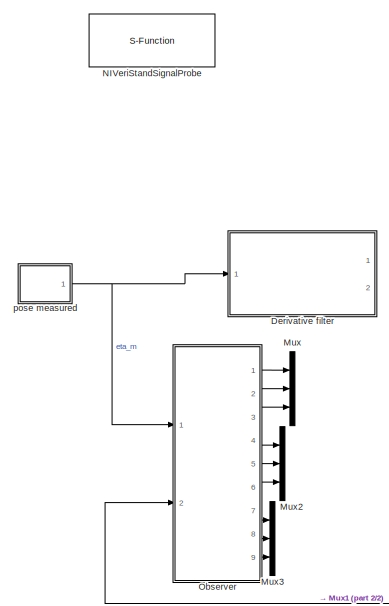
[diagram: root canvas - part 1/2, left side, full height]
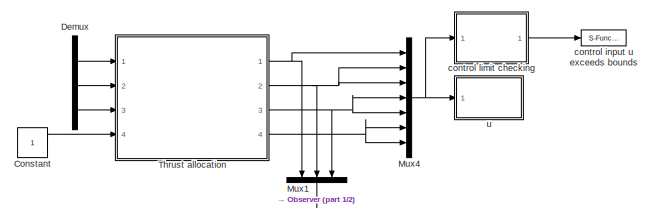
[diagram: root canvas - part 2/2, bottom right region]
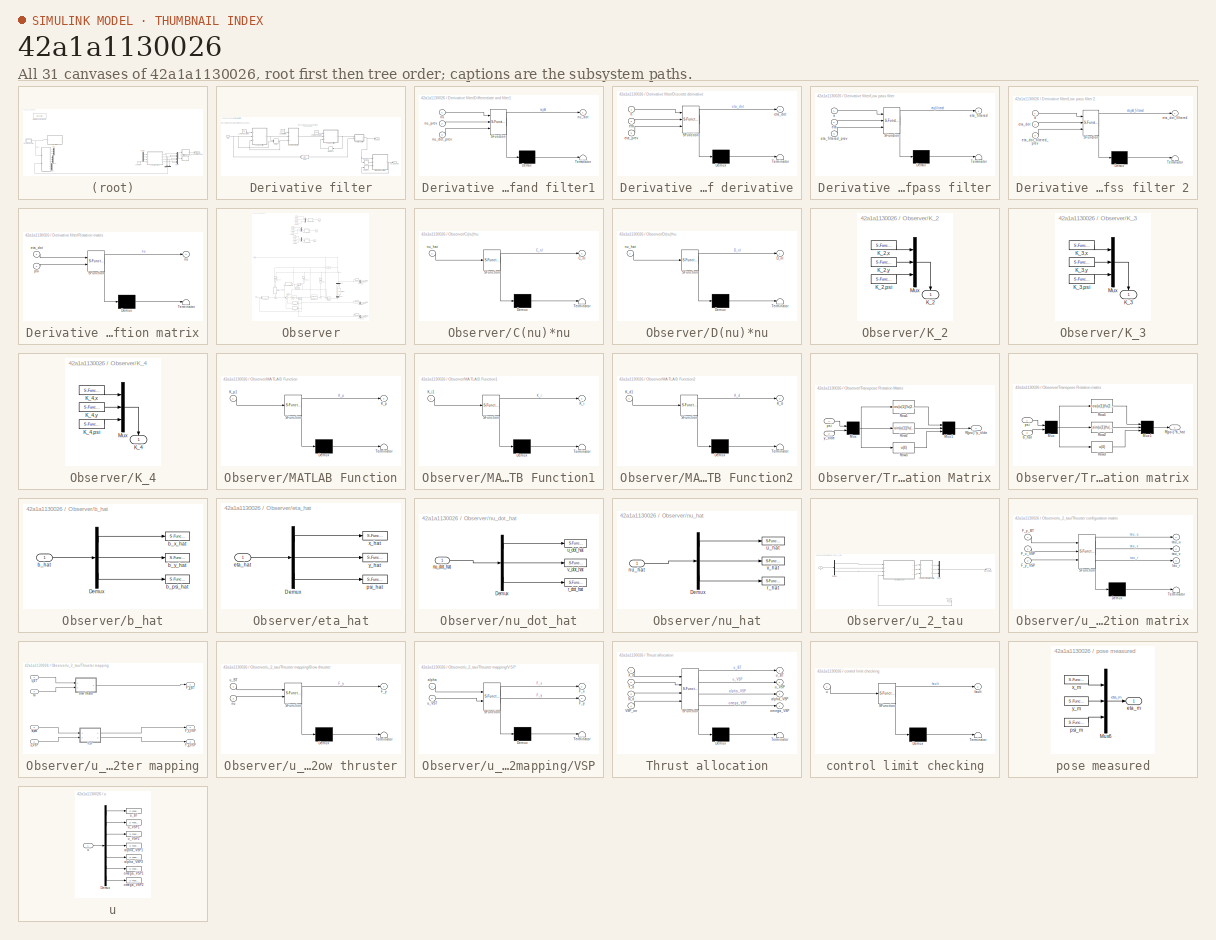
[diagram: thumbnail index - all 31 canvases of the model, root first then tree order]
MODEL slx_42a1a1130026
KIND model
BLOCK [Constant] Constant
BLOCK [Demux] Demux
  DisplayOption = bar
  Outputs = 3
  Ports = [1, 3]
BLOCK [SubSystem] Derivative filter
  Ports = [1, 2]
  RequestExecContextInheritance = off
BLOCK [Delay] Derivative filter/Delay
  DelayLength = 1
  InitialCondition = 0
  InitialConditionSource = Input port
  InputPortMap = u0,p4
  Ports = [2, 1]
BLOCK [SubSystem] Derivative filter/Differentiate and filter1
  ErrorFcn = Stateflow.Translate.translate
  PermitHierarchicalResolution = ExplicitOnly
  Ports = [3, 1]
  RequestExecContextInheritance = off
  SFBlockType = MATLAB Function
  TreatAsAtomicUnit = on
BLOCK [Demux] Derivative filter/Differentiate and filter1/ Demux 
  Outputs = 1
  Ports = [1, 1]
BLOCK [S-Function] Derivative filter/Differentiate and filter1/ SFunction 
  EnableBusSupport = on
  FunctionName = sf_sfun
  PortCounts = [3 2]
  Ports = [3, 2]
  Tag = Stateflow S-Function ctrl_student 5
BLOCK [Terminator] Derivative filter/Differentiate and filter1/ Terminator 
BLOCK [Inport] Derivative filter/Differentiate and filter1/nu
  IconDisplay = Port number
BLOCK [Outport] Derivative filter/Differentiate and filter1/nu_dot
  IconDisplay = Port number
BLOCK [Inport] Derivative filter/Differentiate and filter1/nu_dot_prev
  IconDisplay = Port number
  Port = 3
BLOCK [Inport] Derivative filter/Differentiate and filter1/nu_prev
  IconDisplay = Port number
  Port = 2
BLOCK [SubSystem] Derivative filter/Discrete derivative
  ErrorFcn = Stateflow.Translate.translate
  PermitHierarchicalResolution = ExplicitOnly
  Ports = [3, 1]
  RequestExecContextInheritance = off
  SFBlockType = MATLAB Function
  TreatAsAtomicUnit = on
BLOCK [Demux] Derivative filter/Discrete derivative/ Demux 
  Outputs = 1
  Ports = [1, 1]
BLOCK [S-Function] Derivative filter/Discrete derivative/ SFunction 
  EnableBusSupport = on
  FunctionName = sf_sfun
  PortCounts = [3 2]
  Ports = [3, 2]
  Tag = Stateflow S-Function ctrl_student 33
BLOCK [Terminator] Derivative filter/Discrete derivative/ Terminator 
BLOCK [Inport] Derivative filter/Discrete derivative/eta
  IconDisplay = Port number
  Port = 2
BLOCK [Outport] Derivative filter/Discrete derivative/eta_dot
  IconDisplay = Port number
BLOCK [Inport] Derivative filter/Discrete derivative/eta_prev
  IconDisplay = Port number
  Port = 3
BLOCK [Inport] Derivative filter/Discrete derivative/h
  IconDisplay = Port number
BLOCK [Fcn] Derivative filter/Fcn
  Expr = u(3)
BLOCK [Constant] Derivative filter/Low pass Gain 1
  Value = 0.05
BLOCK [Constant] Derivative filter/Low pass Gain 2
  Value = 0.05
BLOCK [SubSystem] Derivative filter/Low pass filter
  ErrorFcn = Stateflow.Translate.translate
  PermitHierarchicalResolution = ExplicitOnly
  Ports = [3, 1]
  RequestExecContextInheritance = off
  SFBlockType = MATLAB Function
  TreatAsAtomicUnit = on
BLOCK [SubSystem] Derivative filter/Low pass filter 2
  ErrorFcn = Stateflow.Translate.translate
  PermitHierarchicalResolution = ExplicitOnly
  Ports = [3, 1]
  RequestExecContextInheritance = off
  SFBlockType = MATLAB Function
  TreatAsAtomicUnit = on
BLOCK [Demux] Derivative filter/Low pass filter 2/ Demux 
  Outputs = 1
  Ports = [1, 1]
BLOCK [S-Function] Derivative filter/Low pass filter 2/ SFunction 
  EnableBusSupport = on
  FunctionName = sf_sfun
  PortCounts = [3 2]
  Ports = [3, 2]
  Tag = Stateflow S-Function ctrl_student 34
BLOCK [Terminator] Derivative filter/Low pass filter 2/ Terminator 
BLOCK [Inport] Derivative filter/Low pass filter 2/a
  IconDisplay = Port number
BLOCK [Inport] Derivative filter/Low pass filter 2/eta_dot
  IconDisplay = Port number
  Port = 2
BLOCK [Outport] Derivative filter/Low pass filter 2/eta_dot_filtered
  IconDisplay = Port number
BLOCK [Inport] Derivative filter/Low pass filter 2/eta_dot_filtered_prev
  IconDisplay = Port number
  Port = 3
BLOCK [Demux] Derivative filter/Low pass filter/ Demux 
  Outputs = 1
  Ports = [1, 1]
BLOCK [S-Function] Derivative filter/Low pass filter/ SFunction 
  EnableBusSupport = on
  FunctionName = sf_sfun
  PortCounts = [3 2]
  Ports = [3, 2]
  Tag = Stateflow S-Function ctrl_student 32
BLOCK [Terminator] Derivative filter/Low pass filter/ Terminator 
BLOCK [Inport] Derivative filter/Low pass filter/a
  IconDisplay = Port number
BLOCK [Inport] Derivative filter/Low pass filter/eta
  IconDisplay = Port number
  Port = 2
BLOCK [Outport] Derivative filter/Low pass filter/eta_filtered
  IconDisplay = Port number
BLOCK [Inport] Derivative filter/Low pass filter/eta_filtered_prev
  IconDisplay = Port number
  Port = 3
BLOCK [Memory] Derivative filter/Memory1
  X0 = [0 0 0]
BLOCK [Memory] Derivative filter/Memory2
  X0 = [0 0 0]
BLOCK [Memory] Derivative filter/Memory3
  X0 = [0 0 0]
BLOCK [SubSystem] Derivative filter/Rotation matrix
  ErrorFcn = Stateflow.Translate.translate
  PermitHierarchicalResolution = ExplicitOnly
  Ports = [2, 1]
  RequestExecContextInheritance = off
  SFBlockType = MATLAB Function
  TreatAsAtomicUnit = on
BLOCK [Demux] Derivative filter/Rotation matrix/ Demux 
  Outputs = 1
  Ports = [1, 1]
BLOCK [S-Function] Derivative filter/Rotation matrix/ SFunction 
  EnableBusSupport = on
  FunctionName = sf_sfun
  PortCounts = [2 2]
  Ports = [2, 2]
  Tag = Stateflow S-Function ctrl_student 35
BLOCK [Terminator] Derivative filter/Rotation matrix/ Terminator 
BLOCK [Inport] Derivative filter/Rotation matrix/eta_dot
  IconDisplay = Port number
BLOCK [Outport] Derivative filter/Rotation matrix/nu
  IconDisplay = Port number
BLOCK [Inport] Derivative filter/Rotation matrix/psi
  IconDisplay = Port number
  Port = 2
BLOCK [Inport] Derivative filter/eta
  IconDisplay = Port number
BLOCK [Outport] Derivative filter/nu_dot_hat
  IconDisplay = Port number
  Port = 2
BLOCK [Outport] Derivative filter/nu_hat
  IconDisplay = Port number
BLOCK [Constant] Derivative filter/sample time
  Value = 0.01
BLOCK [Mux] Mux
  Commented = on
  DisplayOption = bar
  Inputs = 3
  Ports = [3, 1]
BLOCK [Mux] Mux1
  DisplayOption = bar
  Inputs = 3
  Ports = [3, 1]
BLOCK [Mux] Mux2
  Commented = on
  DisplayOption = bar
  Inputs = 3
  Ports = [3, 1]
BLOCK [Mux] Mux3
  Commented = on
  DisplayOption = bar
  Inputs = 3
  Ports = [3, 1]
BLOCK [Mux] Mux4
  DisplayOption = bar
  Inputs = 7
  Ports = [7, 1]
BLOCK [S-Function] NIVeriStandSignalProbe
  EnableBusSupport = off
  FunctionName = NIVeriStandSignalProbe
  Parameters = 1
  Ports = []
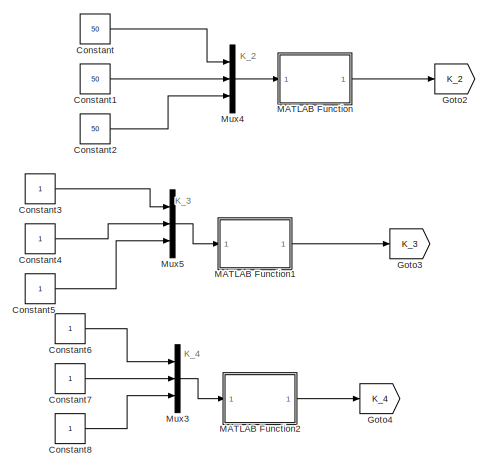
[diagram: Observer - part 1/5, top center region]
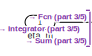
[diagram: Observer - part 2/5, middle left region]
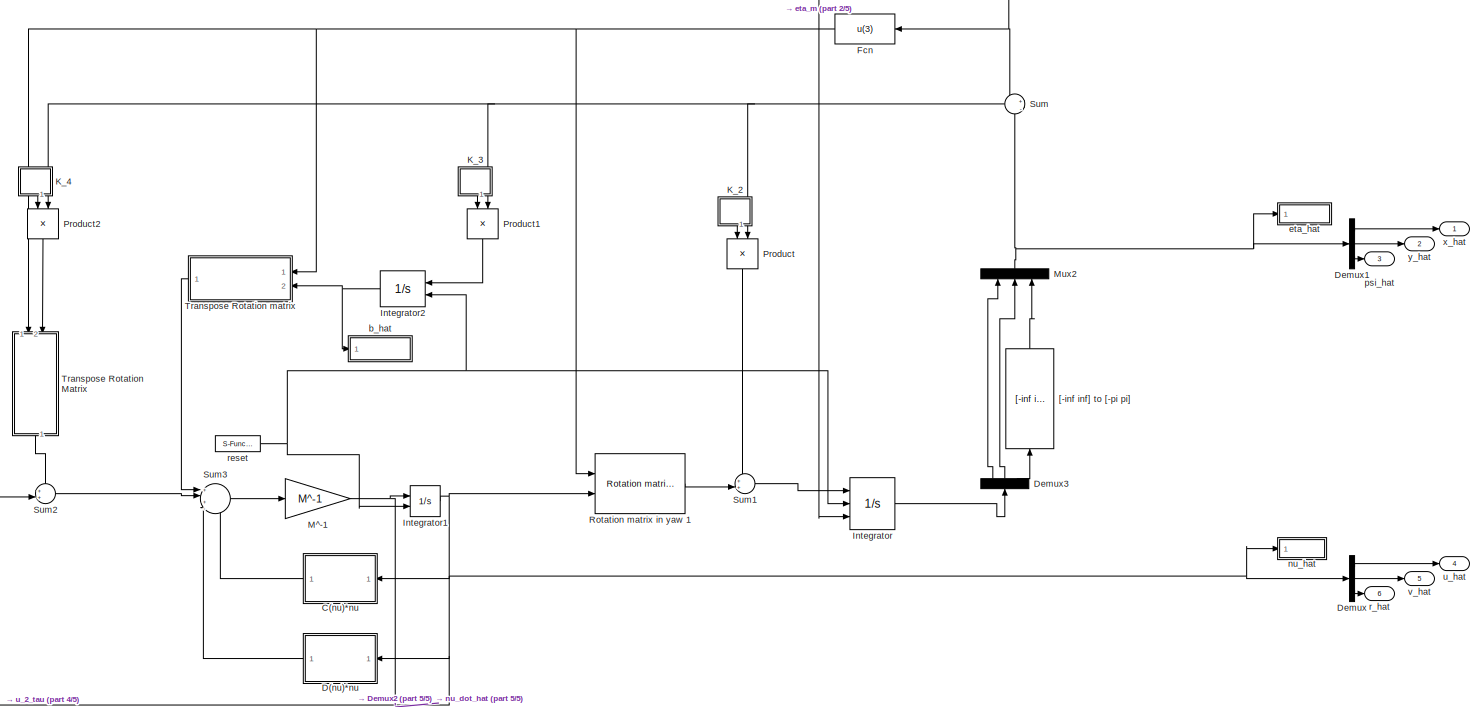
[diagram: Observer - part 3/5, full width, bottom band]
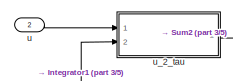
[diagram: Observer - part 4/5, bottom left region]
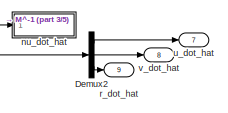
[diagram: Observer - part 5/5, bottom right region]
BLOCK [SubSystem] Observer
  Ports = [2, 9]
  RequestExecContextInheritance = off
BLOCK [SubSystem] Observer/C(nu)*nu
  ErrorFcn = Stateflow.Translate.translate
  PermitHierarchicalResolution = ExplicitOnly
  Ports = [1, 1]
  RequestExecContextInheritance = off
  SFBlockType = MATLAB Function
  TreatAsAtomicUnit = on
BLOCK [Demux] Observer/C(nu)*nu/ Demux 
  Outputs = 1
  Ports = [1, 1]
BLOCK [S-Function] Observer/C(nu)*nu/ SFunction 
  EnableBusSupport = on
  FunctionName = sf_sfun
  PortCounts = [1 2]
  Ports = [1, 2]
  Tag = Stateflow S-Function ctrl_student 15
BLOCK [Terminator] Observer/C(nu)*nu/ Terminator 
BLOCK [Outport] Observer/C(nu)*nu/C_nl
  IconDisplay = Port number
BLOCK [Inport] Observer/C(nu)*nu/nu_hat
  IconDisplay = Port number
BLOCK [Constant] Observer/Constant
  Value = 50
BLOCK [Constant] Observer/Constant1
  Value = 50
BLOCK [Constant] Observer/Constant2
  Value = 50
BLOCK [Constant] Observer/Constant3
BLOCK [Constant] Observer/Constant4
BLOCK [Constant] Observer/Constant5
BLOCK [Constant] Observer/Constant6
BLOCK [Constant] Observer/Constant7
BLOCK [Constant] Observer/Constant8
BLOCK [SubSystem] Observer/D(nu)*nu
  ErrorFcn = Stateflow.Translate.translate
  PermitHierarchicalResolution = ExplicitOnly
  Ports = [1, 1]
  RequestExecContextInheritance = off
  SFBlockType = MATLAB Function
  TreatAsAtomicUnit = on
BLOCK [Demux] Observer/D(nu)*nu/ Demux 
  Outputs = 1
  Ports = [1, 1]
BLOCK [S-Function] Observer/D(nu)*nu/ SFunction 
  EnableBusSupport = on
  FunctionName = sf_sfun
  PortCounts = [1 2]
  Ports = [1, 2]
  Tag = Stateflow S-Function ctrl_student 14
BLOCK [Terminator] Observer/D(nu)*nu/ Terminator 
BLOCK [Outport] Observer/D(nu)*nu/D_nl
  IconDisplay = Port number
BLOCK [Inport] Observer/D(nu)*nu/nu_hat
  IconDisplay = Port number
BLOCK [Demux] Observer/Demux
  DisplayOption = bar
  Outputs = 3
  Ports = [1, 3]
BLOCK [Demux] Observer/Demux1
  DisplayOption = bar
  Outputs = 3
  Ports = [1, 3]
BLOCK [Demux] Observer/Demux2
  DisplayOption = bar
  Outputs = 3
  Ports = [1, 3]
BLOCK [Demux] Observer/Demux3
  DisplayOption = bar
  Outputs = 3
  Ports = [1, 3]
BLOCK [Fcn] Observer/Fcn
  Expr = u(3)
BLOCK [Goto] Observer/Goto2
  GotoTag = K_2
  TagVisibility = global
BLOCK [Goto] Observer/Goto3
  GotoTag = K_3
  TagVisibility = global
BLOCK [Goto] Observer/Goto4
  GotoTag = K_4
  TagVisibility = global
BLOCK [Integrator] Observer/Integrator
  ExternalReset = either
  InitialConditionSource = external
  Ports = [3, 1]
BLOCK [Integrator] Observer/Integrator1
  ExternalReset = either
  InitialCondition = [0 0 0]'
  Ports = [2, 1]
BLOCK [Integrator] Observer/Integrator2
  ExternalReset = either
  InitialCondition = [0 0 0]'
  Ports = [2, 1]
BLOCK [SubSystem] Observer/K_2
  Ports = [0, 1]
  RequestExecContextInheritance = off
BLOCK [Outport] Observer/K_2/K_2
  IconDisplay = Port number
BLOCK [S-Function] Observer/K_2/K_2,psi
  CopyFcn = NIVeriStand_MDL_functions('', 'IO_copy');
  DeleteFcn = NIVeriStand_MDL_functions('', 'IO_delete');
  EnableBusSupport = off
  FunctionName = NIVeriStandIO
  MoveFcn = set_param(gcb, 'Mask', 'on');
  Parameters = width dtype portnum stime stype btype
  Ports = [0, 1]
  Priority = 4
BLOCK [S-Function] Observer/K_2/K_2,x
  CopyFcn = NIVeriStand_MDL_functions('', 'IO_copy');
  DeleteFcn = NIVeriStand_MDL_functions('', 'IO_delete');
  EnableBusSupport = off
  FunctionName = NIVeriStandIO
  MoveFcn = set_param(gcb, 'Mask', 'on');
  Parameters = width dtype portnum stime stype btype
  Ports = [0, 1]
  Priority = 2
BLOCK [S-Function] Observer/K_2/K_2,y
  CopyFcn = NIVeriStand_MDL_functions('', 'IO_copy');
  DeleteFcn = NIVeriStand_MDL_functions('', 'IO_delete');
  EnableBusSupport = off
  FunctionName = NIVeriStandIO
  MoveFcn = set_param(gcb, 'Mask', 'on');
  Parameters = width dtype portnum stime stype btype
  Ports = [0, 1]
  Priority = 3
BLOCK [Mux] Observer/K_2/Mux
  DisplayOption = bar
  Inputs = 3
  Ports = [3, 1]
BLOCK [SubSystem] Observer/K_3
  Ports = [0, 1]
  RequestExecContextInheritance = off
BLOCK [Outport] Observer/K_3/K_3
  IconDisplay = Port number
BLOCK [S-Function] Observer/K_3/K_3,psi
  CopyFcn = NIVeriStand_MDL_functions('', 'IO_copy');
  DeleteFcn = NIVeriStand_MDL_functions('', 'IO_delete');
  EnableBusSupport = off
  FunctionName = NIVeriStandIO
  MoveFcn = set_param(gcb, 'Mask', 'on');
  Parameters = width dtype portnum stime stype btype
  Ports = [0, 1]
  Priority = 1
BLOCK [S-Function] Observer/K_3/K_3,x
  CopyFcn = NIVeriStand_MDL_functions('', 'IO_copy');
  DeleteFcn = NIVeriStand_MDL_functions('', 'IO_delete');
  EnableBusSupport = off
  FunctionName = NIVeriStandIO
  MoveFcn = set_param(gcb, 'Mask', 'on');
  Parameters = width dtype portnum stime stype btype
  Ports = [0, 1]
  Priority = 2
BLOCK [S-Function] Observer/K_3/K_3,y
  CopyFcn = NIVeriStand_MDL_functions('', 'IO_copy');
  DeleteFcn = NIVeriStand_MDL_functions('', 'IO_delete');
  EnableBusSupport = off
  FunctionName = NIVeriStandIO
  MoveFcn = set_param(gcb, 'Mask', 'on');
  Parameters = width dtype portnum stime stype btype
  Ports = [0, 1]
  Priority = 3
BLOCK [Mux] Observer/K_3/Mux
  DisplayOption = bar
  Inputs = 3
  Ports = [3, 1]
BLOCK [SubSystem] Observer/K_4
  Ports = [0, 1]
  RequestExecContextInheritance = off
BLOCK [Outport] Observer/K_4/K_4
  IconDisplay = Port number
BLOCK [S-Function] Observer/K_4/K_4,psi
  CopyFcn = NIVeriStand_MDL_functions('', 'IO_copy');
  DeleteFcn = NIVeriStand_MDL_functions('', 'IO_delete');
  EnableBusSupport = off
  FunctionName = NIVeriStandIO
  MoveFcn = set_param(gcb, 'Mask', 'on');
  Parameters = width dtype portnum stime stype btype
  Ports = [0, 1]
  Priority = 1
BLOCK [S-Function] Observer/K_4/K_4,x
  CopyFcn = NIVeriStand_MDL_functions('', 'IO_copy');
  DeleteFcn = NIVeriStand_MDL_functions('', 'IO_delete');
  EnableBusSupport = off
  FunctionName = NIVeriStandIO
  MoveFcn = set_param(gcb, 'Mask', 'on');
  Parameters = width dtype portnum stime stype btype
  Ports = [0, 1]
  Priority = 2
BLOCK [S-Function] Observer/K_4/K_4,y
  CopyFcn = NIVeriStand_MDL_functions('', 'IO_copy');
  DeleteFcn = NIVeriStand_MDL_functions('', 'IO_delete');
  EnableBusSupport = off
  FunctionName = NIVeriStandIO
  MoveFcn = set_param(gcb, 'Mask', 'on');
  Parameters = width dtype portnum stime stype btype
  Ports = [0, 1]
  Priority = 3
BLOCK [Mux] Observer/K_4/Mux
  DisplayOption = bar
  Inputs = 3
  Ports = [3, 1]
BLOCK [SubSystem] Observer/MATLAB Function
  ErrorFcn = Stateflow.Translate.translate
  PermitHierarchicalResolution = ExplicitOnly
  Ports = [1, 1]
  RequestExecContextInheritance = off
  SFBlockType = MATLAB Function
  TreatAsAtomicUnit = on
BLOCK [Demux] Observer/MATLAB Function/ Demux 
  Outputs = 1
  Ports = [1, 1]
BLOCK [S-Function] Observer/MATLAB Function/ SFunction 
  EnableBusSupport = on
  FunctionName = sf_sfun
  PortCounts = [1 2]
  Ports = [1, 2]
  Tag = Stateflow S-Function ctrl_student 29
BLOCK [Terminator] Observer/MATLAB Function/ Terminator 
BLOCK [Outport] Observer/MATLAB Function/K_p
  IconDisplay = Port number
BLOCK [Inport] Observer/MATLAB Function/K_p1
  IconDisplay = Port number
BLOCK [SubSystem] Observer/MATLAB Function1
  ErrorFcn = Stateflow.Translate.translate
  PermitHierarchicalResolution = ExplicitOnly
  Ports = [1, 1]
  RequestExecContextInheritance = off
  SFBlockType = MATLAB Function
  TreatAsAtomicUnit = on
BLOCK [Demux] Observer/MATLAB Function1/ Demux 
  Outputs = 1
  Ports = [1, 1]
BLOCK [S-Function] Observer/MATLAB Function1/ SFunction 
  EnableBusSupport = on
  FunctionName = sf_sfun
  PortCounts = [1 2]
  Ports = [1, 2]
  Tag = Stateflow S-Function ctrl_student 30
BLOCK [Terminator] Observer/MATLAB Function1/ Terminator 
BLOCK [Outport] Observer/MATLAB Function1/K_i
  IconDisplay = Port number
BLOCK [Inport] Observer/MATLAB Function1/K_i1
  IconDisplay = Port number
BLOCK [SubSystem] Observer/MATLAB Function2
  ErrorFcn = Stateflow.Translate.translate
  PermitHierarchicalResolution = ExplicitOnly
  Ports = [1, 1]
  RequestExecContextInheritance = off
  SFBlockType = MATLAB Function
  TreatAsAtomicUnit = on
BLOCK [Demux] Observer/MATLAB Function2/ Demux 
  Outputs = 1
  Ports = [1, 1]
BLOCK [S-Function] Observer/MATLAB Function2/ SFunction 
  EnableBusSupport = on
  FunctionName = sf_sfun
  PortCounts = [1 2]
  Ports = [1, 2]
  Tag = Stateflow S-Function ctrl_student 31
BLOCK [Terminator] Observer/MATLAB Function2/ Terminator 
BLOCK [Outport] Observer/MATLAB Function2/K_d
  IconDisplay = Port number
BLOCK [Inport] Observer/MATLAB Function2/K_d1
  IconDisplay = Port number
BLOCK [Gain] Observer/M^-1
  Gain = M^-1
  Multiplication = Matrix(K*u)
  OutDataTypeStr = Inherit: Inherit via internal rule
  ParamDataTypeStr = Inherit: Inherit via internal rule
  SaturateOnIntegerOverflow = off
BLOCK [Mux] Observer/Mux2
  DisplayOption = bar
  Inputs = 3
  Ports = [3, 1]
BLOCK [Mux] Observer/Mux3
  DisplayOption = bar
  Inputs = 3
  Ports = [3, 1]
BLOCK [Mux] Observer/Mux4
  DisplayOption = bar
  Inputs = 3
  Ports = [3, 1]
BLOCK [Mux] Observer/Mux5
  DisplayOption = bar
  Inputs = 3
  Ports = [3, 1]
BLOCK [Product] Observer/Product
  InputSameDT = off
  OutDataTypeStr = Inherit: Inherit via internal rule
  Ports = [2, 1]
  RndMeth = Floor
  SaturateOnIntegerOverflow = off
BLOCK [Product] Observer/Product1
  InputSameDT = off
  OutDataTypeStr = Inherit: Inherit via internal rule
  Ports = [2, 1]
  RndMeth = Floor
  SaturateOnIntegerOverflow = off
BLOCK [Product] Observer/Product2
  InputSameDT = off
  OutDataTypeStr = Inherit: Inherit via internal rule
  Ports = [2, 1]
  RndMeth = Floor
  SaturateOnIntegerOverflow = off
BLOCK [Reference] Observer/Rotation matrix in yaw 1  REF=marine_gnc/Models/ Kinematics/Rotation matrix  (lib defined in mdl_10d96c221ba8, mdl_45f1105420c6)
in yaw 
  Ports = [2, 1]
  SourceBlock = marine_gnc/Models/ Kinematics/Rotation matrix\nin yaw
BLOCK [Sum] Observer/Sum
  IconShape = round
  InputSameDT = off
  Inputs = +|-
  OutDataTypeStr = Inherit: Inherit via internal rule
  Ports = [2, 1]
  SaturateOnIntegerOverflow = off
BLOCK [Sum] Observer/Sum1
  IconShape = round
  InputSameDT = off
  Inputs = ++|
  OutDataTypeStr = Inherit: Inherit via internal rule
  Ports = [2, 1]
  SaturateOnIntegerOverflow = off
BLOCK [Sum] Observer/Sum2
  IconShape = round
  InputSameDT = off
  Inputs = ++|
  OutDataTypeStr = Inherit: Inherit via internal rule
  Ports = [2, 1]
  SaturateOnIntegerOverflow = off
BLOCK [Sum] Observer/Sum3
  IconShape = round
  InputSameDT = off
  Inputs = +|+|--
  OutDataTypeStr = Inherit: Inherit via internal rule
  Ports = [4, 1]
  SaturateOnIntegerOverflow = off
BLOCK [SubSystem] Observer/Transpose Rotation Matrix
  Ports = [2, 1]
  RequestExecContextInheritance = off
BLOCK [Mux] Observer/Transpose Rotation Matrix/Mux
  Inputs = 2
  Ports = [2, 1]
BLOCK [Mux] Observer/Transpose Rotation Matrix/Mux1
  Inputs = 3
  Ports = [3, 1]
BLOCK [Outport] Observer/Transpose Rotation Matrix/R(psi)'*y_tilde
  IconDisplay = Port number
BLOCK [Fcn] Observer/Transpose Rotation Matrix/Row1
  Expr = cos(u(1))*u(2)+sin(u(1))*u(3)
BLOCK [Fcn] Observer/Transpose Rotation Matrix/Row2
  Expr = -sin(u(1))*u(2)+cos(u(1))*u(3)
BLOCK [Fcn] Observer/Transpose Rotation Matrix/Row3
  Expr = u(4)
BLOCK [Inport] Observer/Transpose Rotation Matrix/psi
  IconDisplay = Port number
BLOCK [Inport] Observer/Transpose Rotation Matrix/y_tilde
  IconDisplay = Port number
  Port = 2
BLOCK [SubSystem] Observer/Transpose Rotation matrix
  Ports = [2, 1]
  RequestExecContextInheritance = off
BLOCK [Mux] Observer/Transpose Rotation matrix/Mux
  Inputs = 2
  Ports = [2, 1]
BLOCK [Mux] Observer/Transpose Rotation matrix/Mux1
  Inputs = 3
  Ports = [3, 1]
BLOCK [Outport] Observer/Transpose Rotation matrix/R(psi)'*b_hat
  IconDisplay = Port number
BLOCK [Fcn] Observer/Transpose Rotation matrix/Row1
  Expr = cos(u(1))*u(2)+sin(u(1))*u(3)
BLOCK [Fcn] Observer/Transpose Rotation matrix/Row2
  Expr = -sin(u(1))*u(2)+cos(u(1))*u(3)
BLOCK [Fcn] Observer/Transpose Rotation matrix/Row3
  Expr = u(4)
BLOCK [Inport] Observer/Transpose Rotation matrix/b_hat
  IconDisplay = Port number
  Port = 2
BLOCK [Inport] Observer/Transpose Rotation matrix/psi
  IconDisplay = Port number
BLOCK [Reference] Observer/[-inf inf] to [-pi pi]  REF=marine_gnc/Utilities/Math Operations/[-inf inf] to [-pi pi]  (lib defined in mdl_10d96c221ba8, mdl_45f1105420c6)
  Ports = [1, 1]
  SourceBlock = marine_gnc/Utilities/Math Operations/[-inf inf] to [-pi pi]
  SourceType = [-inf inf] to [-pi pi]
BLOCK [SubSystem] Observer/b_hat
  Ports = [1]
  RequestExecContextInheritance = off
BLOCK [Demux] Observer/b_hat/Demux
  DisplayOption = bar
  Outputs = 3
  Ports = [1, 3]
BLOCK [Inport] Observer/b_hat/b_hat
  IconDisplay = Port number
BLOCK [S-Function] Observer/b_hat/b_psi_hat
  CopyFcn = NIVeriStand_MDL_functions('', 'IO_copy');
  DeleteFcn = NIVeriStand_MDL_functions('', 'IO_delete');
  EnableBusSupport = off
  FunctionName = NIVeriStandIO
  MoveFcn = set_param(gcb, 'Mask', 'on');
  Parameters = width dtype portnum stime stype btype
  Ports = [1]
  Priority = 3
BLOCK [S-Function] Observer/b_hat/b_x_hat
  CopyFcn = NIVeriStand_MDL_functions('', 'IO_copy');
  DeleteFcn = NIVeriStand_MDL_functions('', 'IO_delete');
  EnableBusSupport = off
  FunctionName = NIVeriStandIO
  MoveFcn = set_param(gcb, 'Mask', 'on');
  Parameters = width dtype portnum stime stype btype
  Ports = [1]
  Priority = 1
BLOCK [S-Function] Observer/b_hat/b_y_hat
  CopyFcn = NIVeriStand_MDL_functions('', 'IO_copy');
  DeleteFcn = NIVeriStand_MDL_functions('', 'IO_delete');
  EnableBusSupport = off
  FunctionName = NIVeriStandIO
  MoveFcn = set_param(gcb, 'Mask', 'on');
  Parameters = width dtype portnum stime stype btype
  Ports = [1]
  Priority = 2
BLOCK [SubSystem] Observer/eta_hat
  Ports = [1]
  RequestExecContextInheritance = off
BLOCK [Demux] Observer/eta_hat/Demux
  DisplayOption = bar
  Outputs = 3
  Ports = [1, 3]
BLOCK [Inport] Observer/eta_hat/eta_hat
  IconDisplay = Port number
BLOCK [S-Function] Observer/eta_hat/psi_hat
  CopyFcn = NIVeriStand_MDL_functions('', 'IO_copy');
  DeleteFcn = NIVeriStand_MDL_functions('', 'IO_delete');
  EnableBusSupport = off
  FunctionName = NIVeriStandIO
  MoveFcn = set_param(gcb, 'Mask', 'on');
  Parameters = width dtype portnum stime stype btype
  Ports = [1]
  Priority = 3
BLOCK [S-Function] Observer/eta_hat/x_hat
  CopyFcn = NIVeriStand_MDL_functions('', 'IO_copy');
  DeleteFcn = NIVeriStand_MDL_functions('', 'IO_delete');
  EnableBusSupport = off
  FunctionName = NIVeriStandIO
  MoveFcn = set_param(gcb, 'Mask', 'on');
  Parameters = width dtype portnum stime stype btype
  Ports = [1]
  Priority = 1
BLOCK [S-Function] Observer/eta_hat/y_hat
  CopyFcn = NIVeriStand_MDL_functions('', 'IO_copy');
  DeleteFcn = NIVeriStand_MDL_functions('', 'IO_delete');
  EnableBusSupport = off
  FunctionName = NIVeriStandIO
  MoveFcn = set_param(gcb, 'Mask', 'on');
  Parameters = width dtype portnum stime stype btype
  Ports = [1]
  Priority = 2
BLOCK [Inport] Observer/eta_m
  IconDisplay = Port number
BLOCK [SubSystem] Observer/nu_dot_hat
  Ports = [1]
  RequestExecContextInheritance = off
BLOCK [Demux] Observer/nu_dot_hat/Demux
  DisplayOption = bar
  Outputs = 3
  Ports = [1, 3]
BLOCK [Inport] Observer/nu_dot_hat/nu_dot_hat
  IconDisplay = Port number
BLOCK [S-Function] Observer/nu_dot_hat/r_dot_hat
  CopyFcn = NIVeriStand_MDL_functions('', 'IO_copy');
  DeleteFcn = NIVeriStand_MDL_functions('', 'IO_delete');
  EnableBusSupport = off
  FunctionName = NIVeriStandIO
  MoveFcn = set_param(gcb, 'Mask', 'on');
  Parameters = width dtype portnum stime stype btype
  Ports = [1]
  Priority = 3
BLOCK [S-Function] Observer/nu_dot_hat/u_dot_hat
  CopyFcn = NIVeriStand_MDL_functions('', 'IO_copy');
  DeleteFcn = NIVeriStand_MDL_functions('', 'IO_delete');
  EnableBusSupport = off
  FunctionName = NIVeriStandIO
  MoveFcn = set_param(gcb, 'Mask', 'on');
  Parameters = width dtype portnum stime stype btype
  Ports = [1]
  Priority = 1
BLOCK [S-Function] Observer/nu_dot_hat/v_dot_hat
  CopyFcn = NIVeriStand_MDL_functions('', 'IO_copy');
  DeleteFcn = NIVeriStand_MDL_functions('', 'IO_delete');
  EnableBusSupport = off
  FunctionName = NIVeriStandIO
  MoveFcn = set_param(gcb, 'Mask', 'on');
  Parameters = width dtype portnum stime stype btype
  Ports = [1]
  Priority = 2
BLOCK [SubSystem] Observer/nu_hat
  Ports = [1]
  RequestExecContextInheritance = off
BLOCK [Demux] Observer/nu_hat/Demux
  DisplayOption = bar
  Outputs = 3
  Ports = [1, 3]
BLOCK [Inport] Observer/nu_hat/nu_hat
  IconDisplay = Port number
BLOCK [S-Function] Observer/nu_hat/r_hat
  CopyFcn = NIVeriStand_MDL_functions('', 'IO_copy');
  DeleteFcn = NIVeriStand_MDL_functions('', 'IO_delete');
  EnableBusSupport = off
  FunctionName = NIVeriStandIO
  MoveFcn = set_param(gcb, 'Mask', 'on');
  Parameters = width dtype portnum stime stype btype
  Ports = [1]
  Priority = 3
BLOCK [S-Function] Observer/nu_hat/u_hat
  CopyFcn = NIVeriStand_MDL_functions('', 'IO_copy');
  DeleteFcn = NIVeriStand_MDL_functions('', 'IO_delete');
  EnableBusSupport = off
  FunctionName = NIVeriStandIO
  MoveFcn = set_param(gcb, 'Mask', 'on');
  Parameters = width dtype portnum stime stype btype
  Ports = [1]
  Priority = 1
BLOCK [S-Function] Observer/nu_hat/v_hat
  CopyFcn = NIVeriStand_MDL_functions('', 'IO_copy');
  DeleteFcn = NIVeriStand_MDL_functions('', 'IO_delete');
  EnableBusSupport = off
  FunctionName = NIVeriStandIO
  MoveFcn = set_param(gcb, 'Mask', 'on');
  Parameters = width dtype portnum stime stype btype
  Ports = [1]
  Priority = 2
BLOCK [Outport] Observer/psi_hat
  IconDisplay = Port number
  Port = 3
BLOCK [Outport] Observer/r_dot_hat
  IconDisplay = Port number
  Port = 9
BLOCK [Outport] Observer/r_hat
  IconDisplay = Port number
  Port = 6
BLOCK [S-Function] Observer/reset
  CopyFcn = NIVeriStand_MDL_functions('', 'IO_copy');
  DeleteFcn = NIVeriStand_MDL_functions('', 'IO_delete');
  EnableBusSupport = off
  FunctionName = NIVeriStandIO
  MoveFcn = set_param(gcb, 'Mask', 'on');
  Parameters = width dtype portnum stime stype btype
  Ports = [0, 1]
  Priority = 1
BLOCK [Inport] Observer/u
  IconDisplay = Port number
  Port = 2
BLOCK [SubSystem] Observer/u_2_tau
  Ports = [2, 1]
  RequestExecContextInheritance = off
BLOCK [Demux] Observer/u_2_tau/Demux
  DisplayOption = bar
  Outputs = 3
  Ports = [1, 3]
BLOCK [Mux] Observer/u_2_tau/Mux2
  DisplayOption = bar
  Inputs = 3
  Ports = [3, 1]
BLOCK [SubSystem] Observer/u_2_tau/Thruster configuration matrix
  ErrorFcn = Stateflow.Translate.translate
  PermitHierarchicalResolution = ExplicitOnly
  Ports = [3, 3]
  RequestExecContextInheritance = off
  SFBlockType = MATLAB Function
  TreatAsAtomicUnit = on
BLOCK [Demux] Observer/u_2_tau/Thruster configuration matrix/ Demux 
  Outputs = 1
  Ports = [1, 1]
BLOCK [S-Function] Observer/u_2_tau/Thruster configuration matrix/ SFunction 
  EnableBusSupport = on
  FunctionName = sf_sfun
  PortCounts = [3 4]
  Ports = [3, 4]
  Tag = Stateflow S-Function ctrl_student 12
BLOCK [Terminator] Observer/u_2_tau/Thruster configuration matrix/ Terminator 
BLOCK [Inport] Observer/u_2_tau/Thruster configuration matrix/F_x_VSP
  IconDisplay = Port number
  Port = 2
BLOCK [Inport] Observer/u_2_tau/Thruster configuration matrix/F_y_BT
  IconDisplay = Port number
BLOCK [Inport] Observer/u_2_tau/Thruster configuration matrix/F_y_VSP
  IconDisplay = Port number
  Port = 3
BLOCK [Outport] Observer/u_2_tau/Thruster configuration matrix/tau_r
  IconDisplay = Port number
  Port = 3
BLOCK [Outport] Observer/u_2_tau/Thruster configuration matrix/tau_u
  IconDisplay = Port number
BLOCK [Outport] Observer/u_2_tau/Thruster configuration matrix/tau_v
  IconDisplay = Port number
  Port = 2
BLOCK [SubSystem] Observer/u_2_tau/Thruster mapping
  Ports = [4, 3]
  RequestExecContextInheritance = off
BLOCK [SubSystem] Observer/u_2_tau/Thruster mapping/Bow thruster
  ErrorFcn = Stateflow.Translate.translate
  PermitHierarchicalResolution = ExplicitOnly
  Ports = [2, 1]
  RequestExecContextInheritance = off
  SFBlockType = MATLAB Function
  TreatAsAtomicUnit = on
BLOCK [Demux] Observer/u_2_tau/Thruster mapping/Bow thruster/ Demux 
  Outputs = 1
  Ports = [1, 1]
BLOCK [S-Function] Observer/u_2_tau/Thruster mapping/Bow thruster/ SFunction 
  EnableBusSupport = on
  FunctionName = sf_sfun
  PortCounts = [2 2]
  Ports = [2, 2]
  Tag = Stateflow S-Function ctrl_student 13
BLOCK [Terminator] Observer/u_2_tau/Thruster mapping/Bow thruster/ Terminator 
BLOCK [Outport] Observer/u_2_tau/Thruster mapping/Bow thruster/F_y
  IconDisplay = Port number
BLOCK [Inport] Observer/u_2_tau/Thruster mapping/Bow thruster/nu
  IconDisplay = Port number
  Port = 2
BLOCK [Inport] Observer/u_2_tau/Thruster mapping/Bow thruster/u_BT
  IconDisplay = Port number
BLOCK [Outport] Observer/u_2_tau/Thruster mapping/F_x_VSP
  IconDisplay = Port number
  Port = 2
BLOCK [Outport] Observer/u_2_tau/Thruster mapping/F_y_BT
  IconDisplay = Port number
BLOCK [Outport] Observer/u_2_tau/Thruster mapping/F_y_VSP
  IconDisplay = Port number
  Port = 3
BLOCK [SubSystem] Observer/u_2_tau/Thruster mapping/VSP
  ErrorFcn = Stateflow.Translate.translate
  PermitHierarchicalResolution = ExplicitOnly
  Ports = [2, 2]
  RequestExecContextInheritance = off
  SFBlockType = MATLAB Function
  TreatAsAtomicUnit = on
BLOCK [Demux] Observer/u_2_tau/Thruster mapping/VSP/ Demux 
  Outputs = 1
  Ports = [1, 1]
BLOCK [S-Function] Observer/u_2_tau/Thruster mapping/VSP/ SFunction 
  EnableBusSupport = on
  FunctionName = sf_sfun
  PortCounts = [2 3]
  Ports = [2, 3]
  Tag = Stateflow S-Function ctrl_student 19
BLOCK [Terminator] Observer/u_2_tau/Thruster mapping/VSP/ Terminator 
BLOCK [Outport] Observer/u_2_tau/Thruster mapping/VSP/F_x
  IconDisplay = Port number
BLOCK [Outport] Observer/u_2_tau/Thruster mapping/VSP/F_y
  IconDisplay = Port number
  Port = 2
BLOCK [Inport] Observer/u_2_tau/Thruster mapping/VSP/alpha
  IconDisplay = Port number
BLOCK [Inport] Observer/u_2_tau/Thruster mapping/VSP/u_VST
  IconDisplay = Port number
  Port = 2
BLOCK [Inport] Observer/u_2_tau/Thruster mapping/alpha
  IconDisplay = Port number
  Port = 3
BLOCK [Inport] Observer/u_2_tau/Thruster mapping/nu
  IconDisplay = Port number
  Port = 4
BLOCK [Inport] Observer/u_2_tau/Thruster mapping/u_BT
  IconDisplay = Port number
BLOCK [Inport] Observer/u_2_tau/Thruster mapping/u_VSP
  IconDisplay = Port number
  Port = 2
BLOCK [Inport] Observer/u_2_tau/nu_hat
  IconDisplay = Port number
  Port = 2
BLOCK [Outport] Observer/u_2_tau/tau_actual
  IconDisplay = Port number
BLOCK [Inport] Observer/u_2_tau/u
  IconDisplay = Port number
BLOCK [Outport] Observer/u_dot_hat
  IconDisplay = Port number
  Port = 7
BLOCK [Outport] Observer/u_hat
  IconDisplay = Port number
  Port = 4
BLOCK [Outport] Observer/v_dot_hat
  IconDisplay = Port number
  Port = 8
BLOCK [Outport] Observer/v_hat
  IconDisplay = Port number
  Port = 5
BLOCK [Outport] Observer/x_hat
  IconDisplay = Port number
BLOCK [Outport] Observer/y_hat
  IconDisplay = Port number
  Port = 2
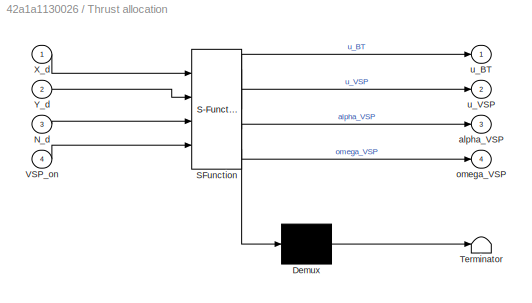
BLOCK [SubSystem] Thrust allocation
  ErrorFcn = Stateflow.Translate.translate
  PermitHierarchicalResolution = ExplicitOnly
  Ports = [4, 4]
  RequestExecContextInheritance = off
  SFBlockType = MATLAB Function
  TreatAsAtomicUnit = on
BLOCK [Demux] Thrust allocation/ Demux 
  Outputs = 1
  Ports = [1, 1]
BLOCK [S-Function] Thrust allocation/ SFunction 
  EnableBusSupport = on
  FunctionName = sf_sfun
  PortCounts = [4 5]
  Ports = [4, 5]
  Tag = Stateflow S-Function ctrl_student 1
BLOCK [Terminator] Thrust allocation/ Terminator 
BLOCK [Inport] Thrust allocation/N_d
  IconDisplay = Port number
  Port = 3
BLOCK [Inport] Thrust allocation/VSP_on
  IconDisplay = Port number
  Port = 4
BLOCK [Inport] Thrust allocation/X_d
  IconDisplay = Port number
BLOCK [Inport] Thrust allocation/Y_d
  IconDisplay = Port number
  Port = 2
BLOCK [Outport] Thrust allocation/alpha_VSP
  IconDisplay = Port number
  Port = 3
BLOCK [Outport] Thrust allocation/omega_VSP
  IconDisplay = Port number
  Port = 4
BLOCK [Outport] Thrust allocation/u_BT
  IconDisplay = Port number
BLOCK [Outport] Thrust allocation/u_VSP
  IconDisplay = Port number
  Port = 2
BLOCK [S-Function] control input u exceeds bounds
  CopyFcn = NIVeriStand_MDL_functions('', 'IO_copy');
  DeleteFcn = NIVeriStand_MDL_functions('', 'IO_delete');
  EnableBusSupport = off
  FunctionName = NIVeriStandIO
  MoveFcn = set_param(gcb, 'Mask', 'on');
  Parameters = width dtype portnum stime stype btype
  Ports = [1]
  Priority = 8
BLOCK [SubSystem] control limit checking
  ErrorFcn = Stateflow.Translate.translate
  PermitHierarchicalResolution = ExplicitOnly
  Ports = [1, 1]
  RequestExecContextInheritance = off
  SFBlockType = MATLAB Function
  TreatAsAtomicUnit = on
BLOCK [Demux] control limit checking/ Demux 
  Outputs = 1
  Ports = [1, 1]
BLOCK [S-Function] control limit checking/ SFunction 
  EnableBusSupport = on
  FunctionName = sf_sfun
  PortCounts = [1 2]
  Ports = [1, 2]
  Tag = Stateflow S-Function ctrl_student 2
BLOCK [Terminator] control limit checking/ Terminator 
BLOCK [Outport] control limit checking/fault
  IconDisplay = Port number
BLOCK [Inport] control limit checking/u
  IconDisplay = Port number
BLOCK [SubSystem] pose measured
  Ports = [0, 1]
  RequestExecContextInheritance = off
BLOCK [Mux] pose measured/Mux6
  DisplayOption = bar
  Inputs = 3
  Ports = [3, 1]
BLOCK [Outport] pose measured/eta_m
  IconDisplay = Port number
BLOCK [S-Function] pose measured/psi_m
  CopyFcn = NIVeriStand_MDL_functions('', 'IO_copy');
  DeleteFcn = NIVeriStand_MDL_functions('', 'IO_delete');
  EnableBusSupport = off
  FunctionName = NIVeriStandIO
  MoveFcn = set_param(gcb, 'Mask', 'on');
  Parameters = width dtype portnum stime stype btype
  Ports = [0, 1]
  Priority = 3
BLOCK [S-Function] pose measured/x_m
  CopyFcn = NIVeriStand_MDL_functions('', 'IO_copy');
  DeleteFcn = NIVeriStand_MDL_functions('', 'IO_delete');
  EnableBusSupport = off
  FunctionName = NIVeriStandIO
  MoveFcn = set_param(gcb, 'Mask', 'on');
  Parameters = width dtype portnum stime stype btype
  Ports = [0, 1]
  Priority = 1
BLOCK [S-Function] pose measured/y_m
  CopyFcn = NIVeriStand_MDL_functions('', 'IO_copy');
  DeleteFcn = NIVeriStand_MDL_functions('', 'IO_delete');
  EnableBusSupport = off
  FunctionName = NIVeriStandIO
  MoveFcn = set_param(gcb, 'Mask', 'on');
  Parameters = width dtype portnum stime stype btype
  Ports = [0, 1]
  Priority = 2
BLOCK [SubSystem] u
  Ports = [1]
  RequestExecContextInheritance = off
BLOCK [Demux] u/Demux
  DisplayOption = bar
  Outputs = 7
  Ports = [1, 7]
BLOCK [S-Function] u/alpha_VSP1
  CopyFcn = NIVeriStand_MDL_functions('', 'IO_copy');
  DeleteFcn = NIVeriStand_MDL_functions('', 'IO_delete');
  EnableBusSupport = off
  FunctionName = NIVeriStandIO
  MoveFcn = set_param(gcb, 'Mask', 'on');
  Parameters = width dtype portnum stime stype btype
  Ports = [1]
  Priority = 4
BLOCK [S-Function] u/alpha_VSP2
  CopyFcn = NIVeriStand_MDL_functions('', 'IO_copy');
  DeleteFcn = NIVeriStand_MDL_functions('', 'IO_delete');
  EnableBusSupport = off
  FunctionName = NIVeriStandIO
  MoveFcn = set_param(gcb, 'Mask', 'on');
  Parameters = width dtype portnum stime stype btype
  Ports = [1]
  Priority = 1
BLOCK [S-Function] u/omega_VSP1
  CopyFcn = NIVeriStand_MDL_functions('', 'IO_copy');
  DeleteFcn = NIVeriStand_MDL_functions('', 'IO_delete');
  EnableBusSupport = off
  FunctionName = NIVeriStandIO
  MoveFcn = set_param(gcb, 'Mask', 'on');
  Parameters = width dtype portnum stime stype btype
  Ports = [1]
  Priority = 2
BLOCK [S-Function] u/omega_VSP2
  CopyFcn = NIVeriStand_MDL_functions('', 'IO_copy');
  DeleteFcn = NIVeriStand_MDL_functions('', 'IO_delete');
  EnableBusSupport = off
  FunctionName = NIVeriStandIO
  MoveFcn = set_param(gcb, 'Mask', 'on');
  Parameters = width dtype portnum stime stype btype
  Ports = [1]
  Priority = 3
BLOCK [Inport] u/u
  IconDisplay = Port number
BLOCK [S-Function] u/u_BT
  CopyFcn = NIVeriStand_MDL_functions('', 'IO_copy');
  DeleteFcn = NIVeriStand_MDL_functions('', 'IO_delete');
  EnableBusSupport = off
  FunctionName = NIVeriStandIO
  MoveFcn = set_param(gcb, 'Mask', 'on');
  Parameters = width dtype portnum stime stype btype
  Ports = [1]
  Priority = 5
BLOCK [S-Function] u/u_VSP1
  CopyFcn = NIVeriStand_MDL_functions('', 'IO_copy');
  DeleteFcn = NIVeriStand_MDL_functions('', 'IO_delete');
  EnableBusSupport = off
  FunctionName = NIVeriStandIO
  MoveFcn = set_param(gcb, 'Mask', 'on');
  Parameters = width dtype portnum stime stype btype
  Ports = [1]
  Priority = 6
BLOCK [S-Function] u/u_VSP2
  CopyFcn = NIVeriStand_MDL_functions('', 'IO_copy');
  DeleteFcn = NIVeriStand_MDL_functions('', 'IO_delete');
  EnableBusSupport = off
  FunctionName = NIVeriStandIO
  MoveFcn = set_param(gcb, 'Mask', 'on');
  Parameters = width dtype portnum stime stype btype
  Ports = [1]
  Priority = 7
ANNOTATION Derivative filter: Reccomended value betwee n 0.01 and 0.1
ANNOTATION Derivative filter: Reccomended value between 0.01 and 0.1
ANNOTATION Observer: K_2
ANNOTATION Observer: K_3
ANNOTATION Observer: K_4
LINE Constant:1 -> Thrust allocation:4
LINE Demux:1 -> Thrust allocation:1
LINE Demux:2 -> Thrust allocation:2
LINE Demux:3 -> Thrust allocation:3
NET Derivative filter/Delay:1 -> Derivative filter/Discrete derivative:3, Derivative filter/Low pass filter:3
NET Derivative filter/Differentiate and filter1:1 -> Derivative filter/Memory1:1, Derivative filter/nu_dot_hat:1
LINE Derivative filter/Discrete derivative:1 -> Derivative filter/Low pass filter 2:2
LINE Derivative filter/Fcn:1 -> Derivative filter/Rotation matrix:2
LINE Derivative filter/Low pass Gain 1:1 -> Derivative filter/Low pass filter:1
LINE Derivative filter/Low pass Gain 2:1 -> Derivative filter/Low pass filter 2:1
NET Derivative filter/Low pass filter 2:1 -> Derivative filter/Memory3:1, Derivative filter/Rotation matrix:1
NET Derivative filter/Low pass filter:1 -> Derivative filter/Delay:1, Derivative filter/Discrete derivative:2
LINE Derivative filter/Memory1:1 -> Derivative filter/Differentiate and filter1:3
LINE Derivative filter/Memory2:1 -> Derivative filter/Differentiate and filter1:2
LINE Derivative filter/Memory3:1 -> Derivative filter/Low pass filter 2:3
NET Derivative filter/Rotation matrix:1 -> Derivative filter/Differentiate and filter1:1, Derivative filter/Memory2:1, Derivative filter/nu_hat:1
NET Derivative filter/eta:1 -> Derivative filter/Delay:2, Derivative filter/Fcn:1, Derivative filter/Low pass filter:2
LINE Derivative filter/sample time:1 -> Derivative filter/Discrete derivative:1
LINE Mux1:1 -> Observer:2
NET Mux4:1 -> control limit checking:1, u:1
LINE Observer/C(nu)*nu:1 -> Observer/Sum3:4
LINE Observer/Constant1:1 -> Observer/Mux4:2
LINE Observer/Constant2:1 -> Observer/Mux4:3
LINE Observer/Constant3:1 -> Observer/Mux5:1
LINE Observer/Constant4:1 -> Observer/Mux5:2
LINE Observer/Constant5:1 -> Observer/Mux5:3
LINE Observer/Constant6:1 -> Observer/Mux3:1
LINE Observer/Constant7:1 -> Observer/Mux3:2
LINE Observer/Constant8:1 -> Observer/Mux3:3
LINE Observer/Constant:1 -> Observer/Mux4:1
LINE Observer/D(nu)*nu:1 -> Observer/Sum3:3
LINE Observer/Demux1:1 -> Observer/x_hat:1
LINE Observer/Demux1:2 -> Observer/y_hat:1
LINE Observer/Demux1:3 -> Observer/psi_hat:1
LINE Observer/Demux2:1 -> Observer/u_dot_hat:1
LINE Observer/Demux2:2 -> Observer/v_dot_hat:1
LINE Observer/Demux2:3 -> Observer/r_dot_hat:1
LINE Observer/Demux3:1 -> Observer/Mux2:1
LINE Observer/Demux3:2 -> Observer/Mux2:2
LINE Observer/Demux3:3 -> Observer/[-inf inf] to [-pi pi]:1
LINE Observer/Demux:1 -> Observer/u_hat:1
LINE Observer/Demux:2 -> Observer/v_hat:1
LINE Observer/Demux:3 -> Observer/r_hat:1
NET Observer/Fcn:1 -> Observer/Rotation matrix in yaw 1:1, Observer/Transpose Rotation Matrix:1, Observer/Transpose Rotation matrix:1
NET Observer/Integrator1:1 -> Observer/C(nu)*nu:1, Observer/D(nu)*nu:1, Observer/Demux:1, Observer/Rotation matrix in yaw 1:2, Observer/nu_hat:1, Observer/u_2_tau:2
NET Observer/Integrator2:1 -> Observer/Transpose Rotation matrix:2, Observer/b_hat:1
LINE Observer/Integrator:1 -> Observer/Demux3:1
LINE Observer/K_2/K_2,psi:1 -> Observer/K_2/Mux:3
LINE Observer/K_2/K_2,x:1 -> Observer/K_2/Mux:1
LINE Observer/K_2/K_2,y:1 -> Observer/K_2/Mux:2
LINE Observer/K_2/Mux:1 -> Observer/K_2/K_2:1
LINE Observer/K_2:1 -> Observer/Product:1
LINE Observer/K_3/K_3,psi:1 -> Observer/K_3/Mux:3
LINE Observer/K_3/K_3,x:1 -> Observer/K_3/Mux:1
LINE Observer/K_3/K_3,y:1 -> Observer/K_3/Mux:2
LINE Observer/K_3/Mux:1 -> Observer/K_3/K_3:1
LINE Observer/K_3:1 -> Observer/Product1:1
LINE Observer/K_4/K_4,psi:1 -> Observer/K_4/Mux:3
LINE Observer/K_4/K_4,x:1 -> Observer/K_4/Mux:1
LINE Observer/K_4/K_4,y:1 -> Observer/K_4/Mux:2
LINE Observer/K_4/Mux:1 -> Observer/K_4/K_4:1
LINE Observer/K_4:1 -> Observer/Product2:1
LINE Observer/MATLAB Function1:1 -> Observer/Goto3:1
LINE Observer/MATLAB Function2:1 -> Observer/Goto4:1
LINE Observer/MATLAB Function:1 -> Observer/Goto2:1
NET Observer/M^-1:1 -> Observer/Demux2:1, Observer/Integrator1:1, Observer/nu_dot_hat:1
NET Observer/Mux2:1 -> Observer/Demux1:1, Observer/Sum:2, Observer/eta_hat:1
LINE Observer/Mux3:1 -> Observer/MATLAB Function2:1
LINE Observer/Mux4:1 -> Observer/MATLAB Function:1
LINE Observer/Mux5:1 -> Observer/MATLAB Function1:1
LINE Observer/Product1:1 -> Observer/Integrator2:1
LINE Observer/Product2:1 -> Observer/Transpose Rotation Matrix:2
LINE Observer/Product:1 -> Observer/Sum1:1
LINE Observer/Rotation matrix in yaw 1:1 -> Observer/Sum1:2
LINE Observer/Sum1:1 -> Observer/Integrator:1
LINE Observer/Sum2:1 -> Observer/Sum3:2
LINE Observer/Sum3:1 -> Observer/M^-1:1
NET Observer/Sum:1 -> Observer/Product1:2, Observer/Product2:2, Observer/Product:2
LINE Observer/Transpose Rotation Matrix/Mux1:1 -> Observer/Transpose Rotation Matrix/R(psi)'*y_tilde:1
NET Observer/Transpose Rotation Matrix/Mux:1 -> Observer/Transpose Rotation Matrix/Row1:1, Observer/Transpose Rotation Matrix/Row2:1, Observer/Transpose Rotation Matrix/Row3:1
LINE Observer/Transpose Rotation Matrix/Row1:1 -> Observer/Transpose Rotation Matrix/Mux1:1
LINE Observer/Transpose Rotation Matrix/Row2:1 -> Observer/Transpose Rotation Matrix/Mux1:2
LINE Observer/Transpose Rotation Matrix/Row3:1 -> Observer/Transpose Rotation Matrix/Mux1:3
LINE Observer/Transpose Rotation Matrix/psi:1 -> Observer/Transpose Rotation Matrix/Mux:1
LINE Observer/Transpose Rotation Matrix/y_tilde:1 -> Observer/Transpose Rotation Matrix/Mux:2
LINE Observer/Transpose Rotation Matrix:1 -> Observer/Sum2:1
LINE Observer/Transpose Rotation matrix/Mux1:1 -> Observer/Transpose Rotation matrix/R(psi)'*b_hat:1
NET Observer/Transpose Rotation matrix/Mux:1 -> Observer/Transpose Rotation matrix/Row1:1, Observer/Transpose Rotation matrix/Row2:1, Observer/Transpose Rotation matrix/Row3:1
LINE Observer/Transpose Rotation matrix/Row1:1 -> Observer/Transpose Rotation matrix/Mux1:1
LINE Observer/Transpose Rotation matrix/Row2:1 -> Observer/Transpose Rotation matrix/Mux1:2
LINE Observer/Transpose Rotation matrix/Row3:1 -> Observer/Transpose Rotation matrix/Mux1:3
LINE Observer/Transpose Rotation matrix/b_hat:1 -> Observer/Transpose Rotation matrix/Mux:2
LINE Observer/Transpose Rotation matrix/psi:1 -> Observer/Transpose Rotation matrix/Mux:1
LINE Observer/Transpose Rotation matrix:1 -> Observer/Sum3:1
LINE Observer/[-inf inf] to [-pi pi]:1 -> Observer/Mux2:3
LINE Observer/b_hat/Demux:1 -> Observer/b_hat/b_x_hat:1
LINE Observer/b_hat/Demux:2 -> Observer/b_hat/b_y_hat:1
LINE Observer/b_hat/Demux:3 -> Observer/b_hat/b_psi_hat:1
LINE Observer/b_hat/b_hat:1 -> Observer/b_hat/Demux:1
LINE Observer/eta_hat/Demux:1 -> Observer/eta_hat/x_hat:1
LINE Observer/eta_hat/Demux:2 -> Observer/eta_hat/y_hat:1
LINE Observer/eta_hat/Demux:3 -> Observer/eta_hat/psi_hat:1
LINE Observer/eta_hat/eta_hat:1 -> Observer/eta_hat/Demux:1
NET Observer/eta_m:1 -> Observer/Fcn:1, Observer/Integrator:3, Observer/Sum:1
LINE Observer/nu_dot_hat/Demux:1 -> Observer/nu_dot_hat/u_dot_hat:1
LINE Observer/nu_dot_hat/Demux:2 -> Observer/nu_dot_hat/v_dot_hat:1
LINE Observer/nu_dot_hat/Demux:3 -> Observer/nu_dot_hat/r_dot_hat:1
LINE Observer/nu_dot_hat/nu_dot_hat:1 -> Observer/nu_dot_hat/Demux:1
LINE Observer/nu_hat/Demux:1 -> Observer/nu_hat/u_hat:1
LINE Observer/nu_hat/Demux:2 -> Observer/nu_hat/v_hat:1
LINE Observer/nu_hat/Demux:3 -> Observer/nu_hat/r_hat:1
LINE Observer/nu_hat/nu_hat:1 -> Observer/nu_hat/Demux:1
NET Observer/reset:1 -> Observer/Integrator1:2, Observer/Integrator2:2, Observer/Integrator:2
LINE Observer/u:1 -> Observer/u_2_tau:1
LINE Observer/u_2_tau/Demux:1 -> Observer/u_2_tau/Thruster mapping:1
LINE Observer/u_2_tau/Demux:2 -> Observer/u_2_tau/Thruster mapping:2
LINE Observer/u_2_tau/Demux:3 -> Observer/u_2_tau/Thruster mapping:3
LINE Observer/u_2_tau/Mux2:1 -> Observer/u_2_tau/tau_actual:1
LINE Observer/u_2_tau/Thruster configuration matrix:1 -> Observer/u_2_tau/Mux2:1
LINE Observer/u_2_tau/Thruster configuration matrix:2 -> Observer/u_2_tau/Mux2:2
LINE Observer/u_2_tau/Thruster configuration matrix:3 -> Observer/u_2_tau/Mux2:3
LINE Observer/u_2_tau/Thruster mapping/Bow thruster:1 -> Observer/u_2_tau/Thruster mapping/F_y_BT:1
LINE Observer/u_2_tau/Thruster mapping/VSP:1 -> Observer/u_2_tau/Thruster mapping/F_x_VSP:1
LINE Observer/u_2_tau/Thruster mapping/VSP:2 -> Observer/u_2_tau/Thruster mapping/F_y_VSP:1
LINE Observer/u_2_tau/Thruster mapping/alpha:1 -> Observer/u_2_tau/Thruster mapping/VSP:1
LINE Observer/u_2_tau/Thruster mapping/nu:1 -> Observer/u_2_tau/Thruster mapping/Bow thruster:2
LINE Observer/u_2_tau/Thruster mapping/u_BT:1 -> Observer/u_2_tau/Thruster mapping/Bow thruster:1
LINE Observer/u_2_tau/Thruster mapping/u_VSP:1 -> Observer/u_2_tau/Thruster mapping/VSP:2
LINE Observer/u_2_tau/Thruster mapping:1 -> Observer/u_2_tau/Thruster configuration matrix:1
LINE Observer/u_2_tau/Thruster mapping:2 -> Observer/u_2_tau/Thruster configuration matrix:2
LINE Observer/u_2_tau/Thruster mapping:3 -> Observer/u_2_tau/Thruster configuration matrix:3
LINE Observer/u_2_tau/nu_hat:1 -> Observer/u_2_tau/Thruster mapping:4
LINE Observer/u_2_tau/u:1 -> Observer/u_2_tau/Demux:1
LINE Observer/u_2_tau:1 -> Observer/Sum2:2
LINE Observer:1 -> Mux:1
LINE Observer:2 -> Mux:2
LINE Observer:3 -> Mux:3
LINE Observer:4 -> Mux2:1
LINE Observer:5 -> Mux2:2
LINE Observer:6 -> Mux2:3
LINE Observer:7 -> Mux3:1
LINE Observer:8 -> Mux3:2
LINE Observer:9 -> Mux3:3
NET Thrust allocation:1 -> Mux1:1, Mux4:1
NET Thrust allocation:2 -> Mux1:2, Mux4:2, Mux4:3
NET Thrust allocation:3 -> Mux1:3, Mux4:4, Mux4:5
NET Thrust allocation:4 -> Mux4:6, Mux4:7
LINE control limit checking:1 -> control input u exceeds bounds:1
LINE pose measured/Mux6:1 -> pose measured/eta_m:1
LINE pose measured/psi_m:1 -> pose measured/Mux6:3
LINE pose measured/x_m:1 -> pose measured/Mux6:1
LINE pose measured/y_m:1 -> pose measured/Mux6:2
NET pose measured:1 -> Derivative filter:1, Observer:1
LINE u/Demux:1 -> u/u_BT:1
LINE u/Demux:2 -> u/u_VSP1:1
LINE u/Demux:3 -> u/u_VSP2:1
LINE u/Demux:4 -> u/alpha_VSP1:1
LINE u/Demux:5 -> u/alpha_VSP2:1
LINE u/Demux:6 -> u/omega_VSP1:1
LINE u/Demux:7 -> u/omega_VSP2:1
LINE u/u:1 -> u/Demux:1
note: NET lines group one-source signal fan-out (src -> all destinations, sorted); 1:1 wires keep LINE
